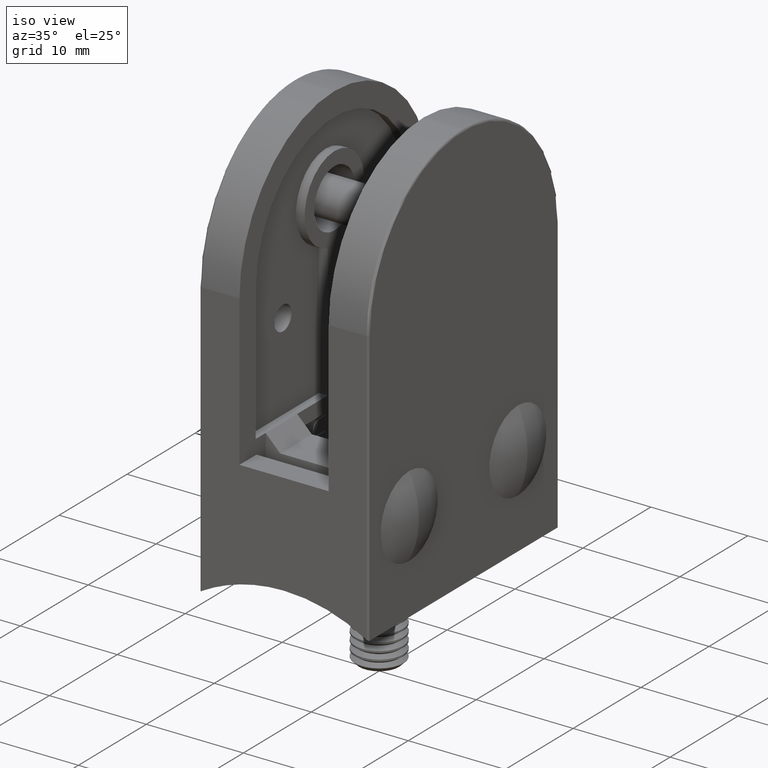
[diagram: clean part render]
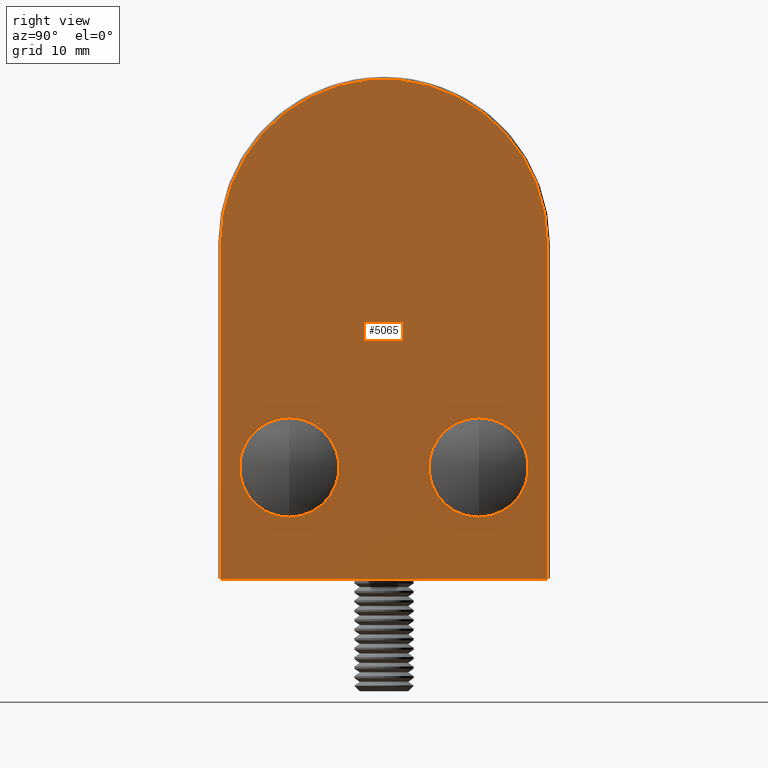
[diagram: tour spotlight — one face highlighted and labeled with its STEP entity id]
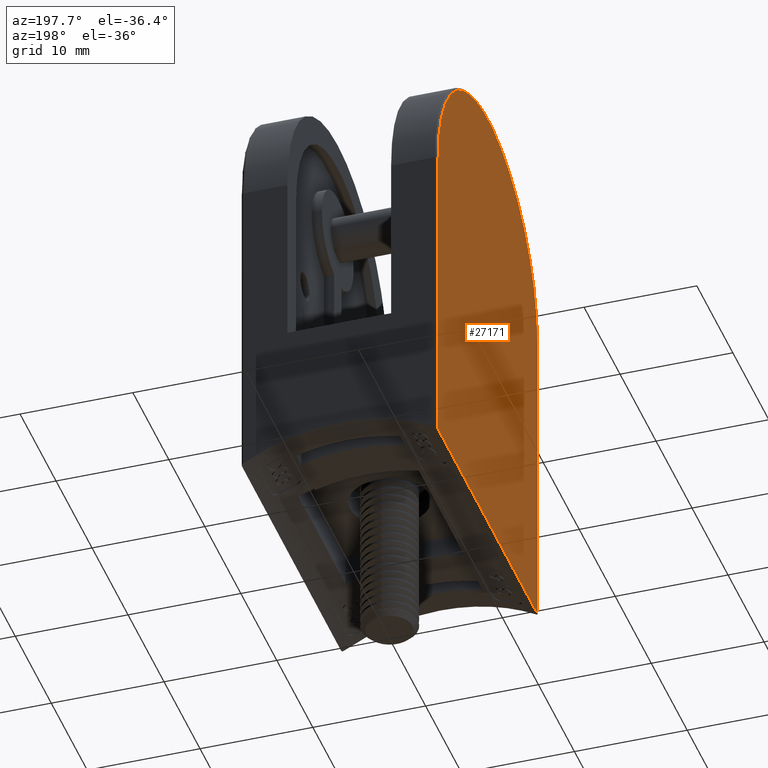
[diagram: tour spotlight — one face highlighted and labeled with its STEP entity id]
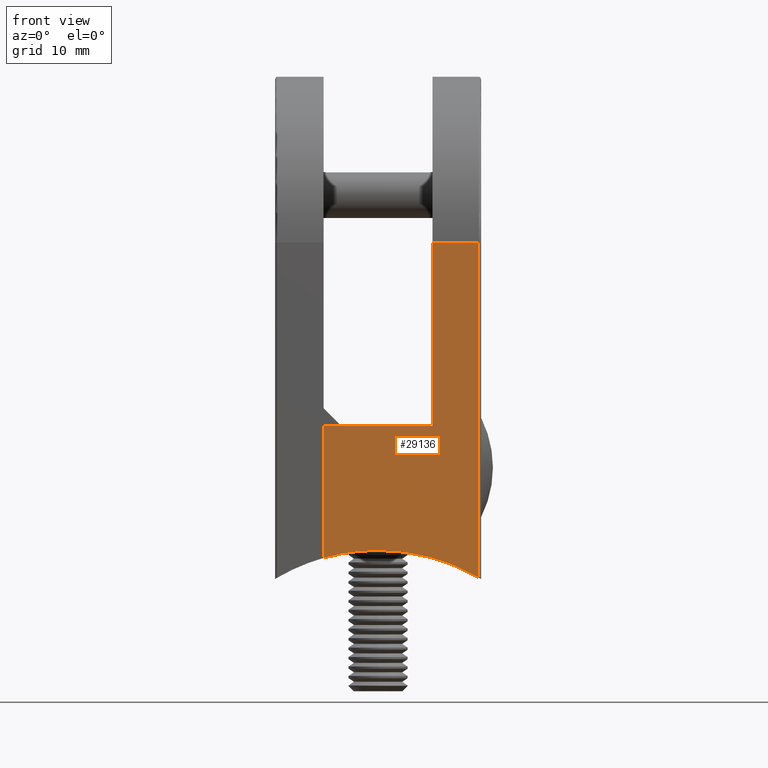
[diagram: tour spotlight — one face highlighted and labeled with its STEP entity id]
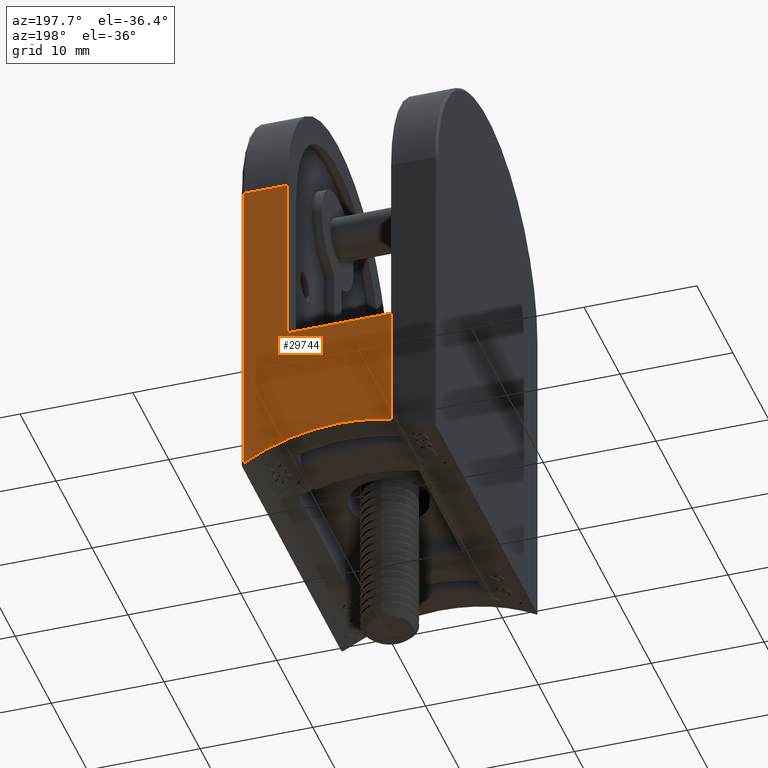
[diagram: tour spotlight — one face highlighted and labeled with its STEP entity id]
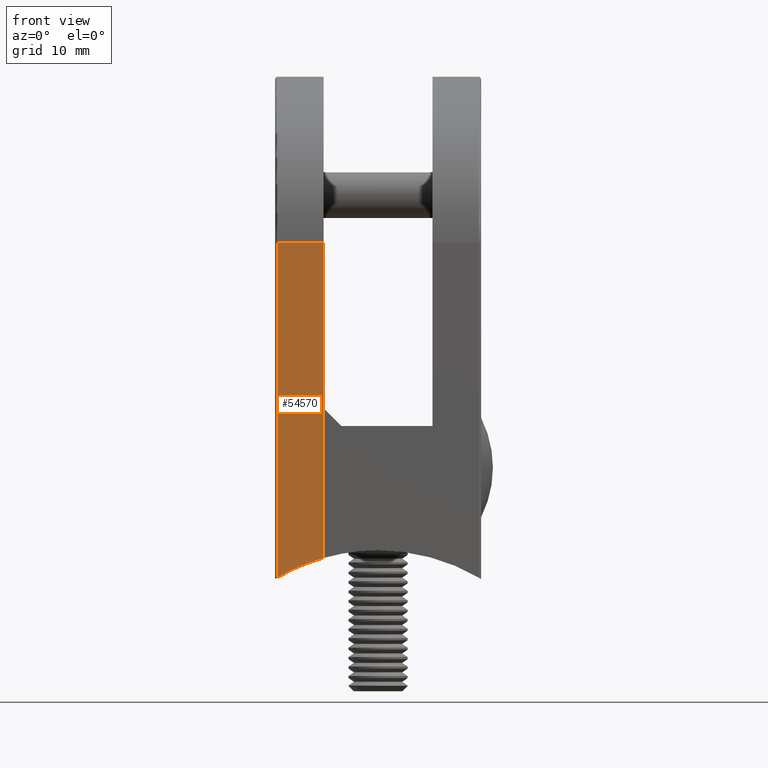
[diagram: tour spotlight — one face highlighted and labeled with its STEP entity id]
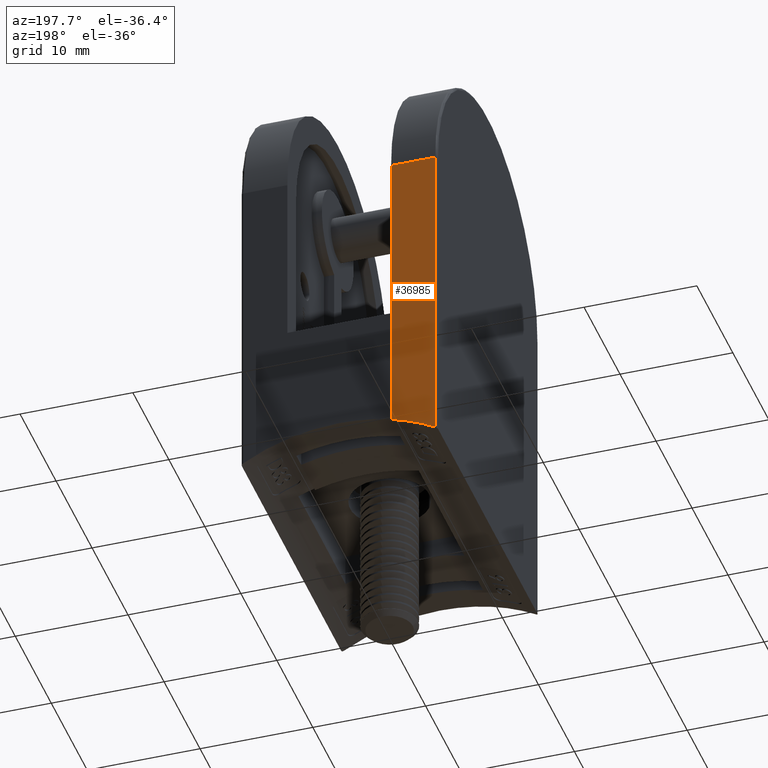
[diagram: tour spotlight — one face highlighted and labeled with its STEP entity id]
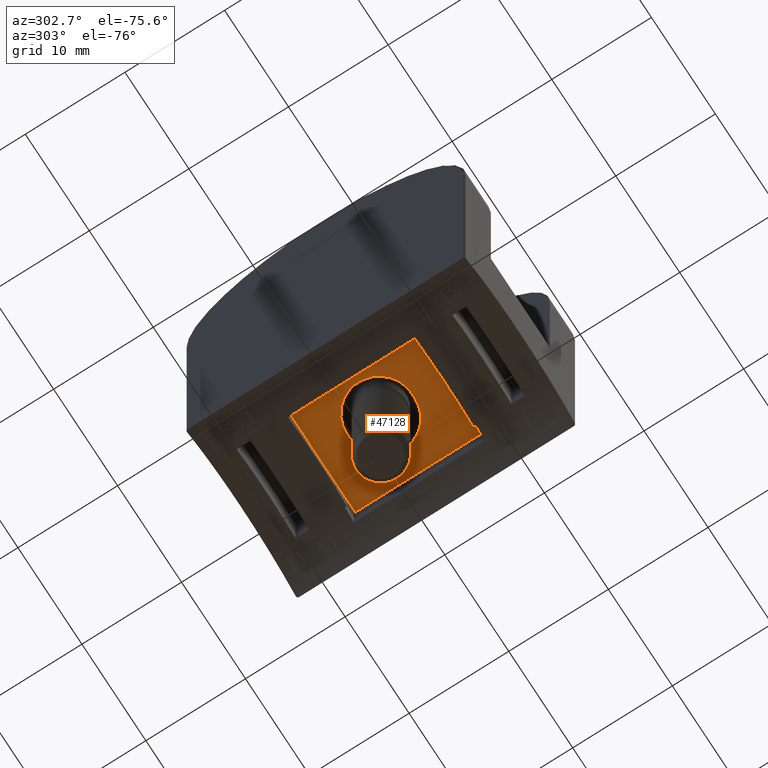
[diagram: tour spotlight — one face highlighted and labeled with its STEP entity id]
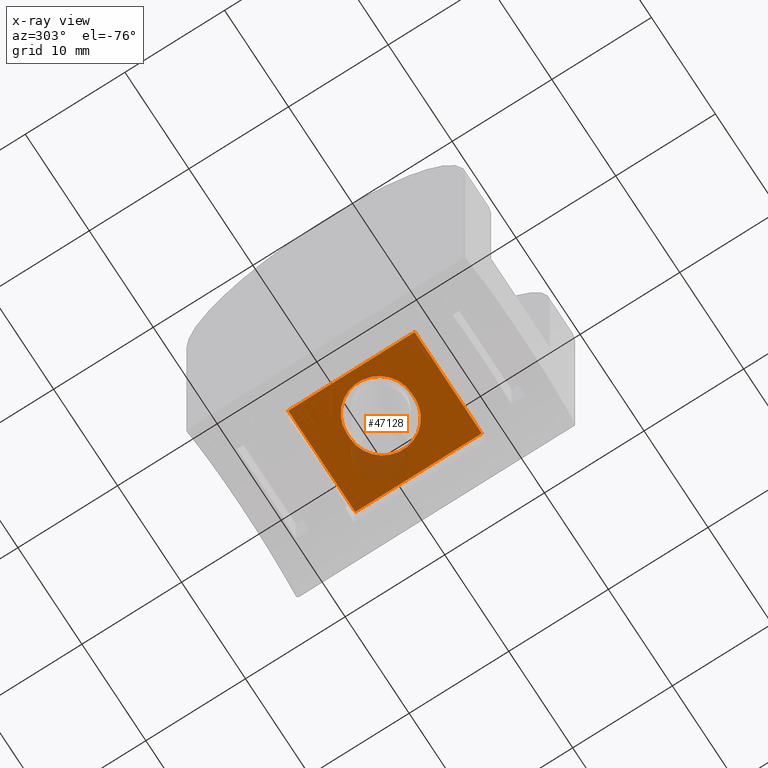
[diagram: x-ray of the same camera — body ghosted, this tour face saturated]
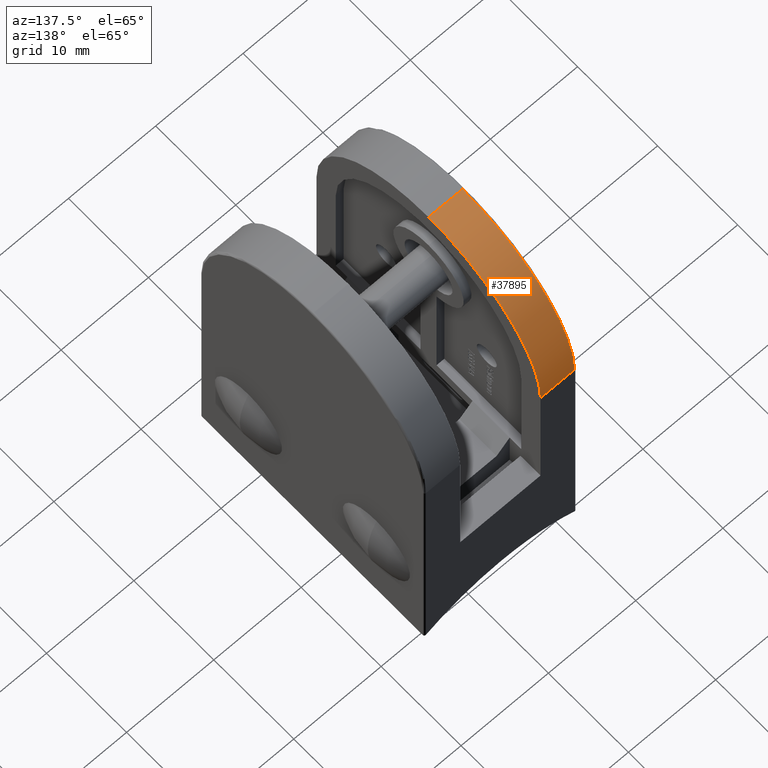
[diagram: tour spotlight — one face highlighted and labeled with its STEP entity id]
A machine part: a face-by-face anatomy tour. The part has 1423 B-rep faces; the first image is the clean iso view, then the 8 largest visible faces are spotlighted one at a time (largest first), each with its STEP entity span.

Face 1 — right view, entity #5065. In plain terms, the highlighted planar face has unit normal (-1, 0, 0).
Definition (entity closure, byte-faithful):
#16 = CARTESIAN_POINT ( 'NONE',  ( -3.469446951953614200E-015, -8.000000000000000000, 2.899999999999993700 ) ) ;
#1720 = ORIENTED_EDGE ( 'NONE', *, *, #41742, .T. ) ;
#1745 = CIRCLE ( 'NONE', #15696, 4.099999999999998800 ) ;
#2087 = CARTESIAN_POINT ( 'NONE',  ( 0.0000000000000000000, -13.99999999999999800, -2.419736662139534600 ) ) ;
#2417 = EDGE_LOOP ( 'NONE', ( #39824, #46245 ) ) ;
#3708 = EDGE_LOOP ( 'NONE', ( #17464, #22022 ) ) ;
#4384 = CARTESIAN_POINT ( 'NONE',  ( -3.469446951953614200E-015, -8.000000000000000000, 6.999999999999992900 ) ) ;
#4615 = CIRCLE ( 'NONE', #22841, 13.79999999999999400 ) ;
#4996 = DIRECTION ( 'NONE',  ( -1.000000000000000000, -0.0000000000000000000, -0.0000000000000000000 ) ) ;
#5065 = ADVANCED_FACE ( 'NONE', ( #8826, #7345, #26538 ), #55468, .F. ) ;
#5357 = CARTESIAN_POINT ( 'NONE',  ( 0.0000000000000000000, -13.79999999999999400, 25.99999999999999600 ) ) ;
#5959 = AXIS2_PLACEMENT_3D ( 'NONE', #39385, #30011, #39598 ) ;
#6668 = EDGE_CURVE ( 'NONE', #29475, #37802, #58371, .T. ) ;
#7345 = FACE_BOUND ( 'NONE', #2417, .T. ) ;
#8209 = AXIS2_PLACEMENT_3D ( 'NONE', #17976, #55538, #27105 ) ;
#8826 = FACE_BOUND ( 'NONE', #3708, .T. ) ;
#9934 = CIRCLE ( 'NONE', #8209, 4.099999999999998800 ) ;
#10102 = VERTEX_POINT ( 'NONE', #50604 ) ;
#10122 = DIRECTION ( 'NONE',  ( 0.0000000000000000000, 0.0000000000000000000, -1.000000000000000000 ) ) ;
#10319 = DIRECTION ( 'NONE',  ( -1.000000000000000000, -0.0000000000000000000, -0.0000000000000000000 ) ) ;
#12195 = DIRECTION ( 'NONE',  ( 0.0000000000000000000, -1.000000000000000000, 0.0000000000000000000 ) ) ;
#12392 = VERTEX_POINT ( 'NONE', #59651 ) ;
#13150 = CARTESIAN_POINT ( 'NONE',  ( 0.0000000000000000000, 0.0000000000000000000, 25.99999999999999600 ) ) ;
#13804 = AXIS2_PLACEMENT_3D ( 'NONE', #13150, #31886, #27032 ) ;
#14394 = EDGE_CURVE ( 'NONE', #10102, #17639, #34475, .T. ) ;
#14409 = DIRECTION ( 'NONE',  ( -0.0000000000000000000, 6.672013369141565500E-017, 1.000000000000000000 ) ) ;
#15696 = AXIS2_PLACEMENT_3D ( 'NONE', #4384, #37570, #23788 ) ;
#17464 = ORIENTED_EDGE ( 'NONE', *, *, #6668, .F. ) ;
#17639 = VERTEX_POINT ( 'NONE', #16 ) ;
#17976 = CARTESIAN_POINT ( 'NONE',  ( -3.469446951953614200E-015, 8.000000000000000000, 6.999999999999992900 ) ) ;
#18278 = VECTOR ( 'NONE', #12195, 1000.000000000000000 ) ;
#19091 = VERTEX_POINT ( 'NONE', #51827 ) ;
#21152 = CARTESIAN_POINT ( 'NONE',  ( -3.469446951953614200E-015, 8.000000000000000000, 2.899999999999993700 ) ) ;
#21609 = ORIENTED_EDGE ( 'NONE', *, *, #57088, .T. ) ;
#22022 = ORIENTED_EDGE ( 'NONE', *, *, #32457, .F. ) ;
#22704 = LINE ( 'NONE', #2087, #18278 ) ;
#22841 = AXIS2_PLACEMENT_3D ( 'NONE', #29376, #10319, #10122 ) ;
#23401 = DIRECTION ( 'NONE',  ( 0.0000000000000000000, 0.0000000000000000000, 1.000000000000000000 ) ) ;
#23788 = DIRECTION ( 'NONE',  ( 0.0000000000000000000, 0.0000000000000000000, 1.000000000000000000 ) ) ;
#24076 = ORIENTED_EDGE ( 'NONE', *, *, #33227, .T. ) ;
#25274 = CARTESIAN_POINT ( 'NONE',  ( 0.0000000000000000000, -13.79999999999999700, -2.419736662139534600 ) ) ;
#25986 = DIRECTION ( 'NONE',  ( -0.0000000000000000000, 6.672013369141565500E-017, -1.000000000000000000 ) ) ;
#26110 = CARTESIAN_POINT ( 'NONE',  ( -3.469446951953614200E-015, 8.000000000000000000, 11.09999999999999300 ) ) ;
#26538 = FACE_OUTER_BOUND ( 'NONE', #42245, .T. ) ;
#27032 = DIRECTION ( 'NONE',  ( 0.0000000000000000000, 0.0000000000000000000, -1.000000000000000000 ) ) ;
#27105 = DIRECTION ( 'NONE',  ( 0.0000000000000000000, 0.0000000000000000000, 1.000000000000000000 ) ) ;
#29376 = CARTESIAN_POINT ( 'NONE',  ( 0.0000000000000000000, 0.0000000000000000000, 25.99999999999999600 ) ) ;
#29475 = VERTEX_POINT ( 'NONE', #26110 ) ;
#30011 = DIRECTION ( 'NONE',  ( -1.000000000000000000, -0.0000000000000000000, -0.0000000000000000000 ) ) ;
#30346 = VECTOR ( 'NONE', #25986, 1000.000000000000000 ) ;
#31557 = AXIS2_PLACEMENT_3D ( 'NONE', #33442, #4996, #23401 ) ;
#31886 = DIRECTION ( 'NONE',  ( 1.000000000000000000, 0.0000000000000000000, 0.0000000000000000000 ) ) ;
#32457 = EDGE_CURVE ( 'NONE', #37802, #29475, #9934, .T. ) ;
#33227 = EDGE_CURVE ( 'NONE', #45881, #12392, #42477, .T. ) ;
#33442 = CARTESIAN_POINT ( 'NONE',  ( -3.469446951953614200E-015, -8.000000000000000000, 6.999999999999992900 ) ) ;
#34475 = CIRCLE ( 'NONE', #31557, 4.099999999999998800 ) ;
#37570 = DIRECTION ( 'NONE',  ( -1.000000000000000000, -0.0000000000000000000, -0.0000000000000000000 ) ) ;
#37802 = VERTEX_POINT ( 'NONE', #21152 ) ;
#38862 = VERTEX_POINT ( 'NONE', #59302 ) ;
#39385 = CARTESIAN_POINT ( 'NONE',  ( -3.469446951953614200E-015, 8.000000000000000000, 6.999999999999992900 ) ) ;
#39598 = DIRECTION ( 'NONE',  ( 0.0000000000000000000, 0.0000000000000000000, 1.000000000000000000 ) ) ;
#39824 = ORIENTED_EDGE ( 'NONE', *, *, #14394, .F. ) ;
#40604 = CARTESIAN_POINT ( 'NONE',  ( 0.0000000000000000000, 13.79999999999999400, 25.99999999999999600 ) ) ;
#41742 = EDGE_CURVE ( 'NONE', #19091, #38862, #58531, .T. ) ;
#42245 = EDGE_LOOP ( 'NONE', ( #1720, #21609, #24076, #46455 ) ) ;
#42477 = LINE ( 'NONE', #5357, #51277 ) ;
#45881 = VERTEX_POINT ( 'NONE', #25274 ) ;
#46245 = ORIENTED_EDGE ( 'NONE', *, *, #48935, .F. ) ;
#46455 = ORIENTED_EDGE ( 'NONE', *, *, #50740, .T. ) ;
#48935 = EDGE_CURVE ( 'NONE', #17639, #10102, #1745, .T. ) ;
#50604 = CARTESIAN_POINT ( 'NONE',  ( -3.469446951953614200E-015, -8.000000000000000000, 11.09999999999999300 ) ) ;
#50740 = EDGE_CURVE ( 'NONE', #12392, #19091, #4615, .T. ) ;
#51277 = VECTOR ( 'NONE', #14409, 1000.000000000000000 ) ;
#51827 = CARTESIAN_POINT ( 'NONE',  ( 0.0000000000000000000, 13.79999999999999400, 25.99999999999999600 ) ) ;
#55468 = PLANE ( 'NONE',  #13804 ) ;
#55538 = DIRECTION ( 'NONE',  ( -1.000000000000000000, -0.0000000000000000000, -0.0000000000000000000 ) ) ;
#57088 = EDGE_CURVE ( 'NONE', #38862, #45881, #22704, .T. ) ;
#58371 = CIRCLE ( 'NONE', #5959, 4.099999999999998800 ) ;
#58531 = LINE ( 'NONE', #40604, #30346 ) ;
#59302 = CARTESIAN_POINT ( 'NONE',  ( 0.0000000000000000000, 13.79999999999999500, -2.419736662139541700 ) ) ;
#59651 = CARTESIAN_POINT ( 'NONE',  ( 0.0000000000000000000, -13.79999999999999400, 25.99999999999999600 ) ) ;

Face 2 — auxiliary view, entity #27171. In plain terms, the highlighted planar face has unit normal (1, 0, 0).
Definition (entity closure, byte-faithful):
#540 = CARTESIAN_POINT ( 'NONE',  ( 0.0000000000000000000, 0.0000000000000000000, 25.99999999999999600 ) ) ;
#1070 = DIRECTION ( 'NONE',  ( 0.0000000000000000000, -0.0000000000000000000, -1.000000000000000000 ) ) ;
#3882 = CARTESIAN_POINT ( 'NONE',  ( 0.0000000000000000000, 13.79999999999999400, -2.419736662139532900 ) ) ;
#5803 = PLANE ( 'NONE',  #49764 ) ;
#7057 = CARTESIAN_POINT ( 'NONE',  ( 0.0000000000000000000, -13.79999999999999500, 25.99999999999999600 ) ) ;
#8848 = DIRECTION ( 'NONE',  ( 0.0000000000000000000, -1.000000000000000000, 0.0000000000000000000 ) ) ;
#15543 = LINE ( 'NONE', #7057, #40851 ) ;
#18324 = VERTEX_POINT ( 'NONE', #43872 ) ;
#19316 = EDGE_CURVE ( 'NONE', #40207, #18324, #15543, .T. ) ;
#21567 = DIRECTION ( 'NONE',  ( 0.0000000000000000000, 0.0000000000000000000, -1.000000000000000000 ) ) ;
#22877 = FACE_OUTER_BOUND ( 'NONE', #48523, .T. ) ;
#23243 = ORIENTED_EDGE ( 'NONE', *, *, #24845, .T. ) ;
#24845 = EDGE_CURVE ( 'NONE', #30374, #40207, #31954, .T. ) ;
#26656 = LINE ( 'NONE', #48735, #46005 ) ;
#27171 = ADVANCED_FACE ( 'NONE', ( #22877 ), #5803, .F. ) ;
#27970 = CARTESIAN_POINT ( 'NONE',  ( 0.0000000000000000000, 13.79999999999999500, 25.99999999999999600 ) ) ;
#30374 = VERTEX_POINT ( 'NONE', #3882 ) ;
#30884 = DIRECTION ( 'NONE',  ( -0.0000000000000000000, -0.0000000000000000000, 1.000000000000000000 ) ) ;
#31065 = EDGE_CURVE ( 'NONE', #18324, #48897, #36781, .T. ) ;
#31689 = CARTESIAN_POINT ( 'NONE',  ( 0.0000000000000000000, -13.99999999999999500, -2.419736662139532900 ) ) ;
#31954 = LINE ( 'NONE', #31689, #48994 ) ;
#33709 = DIRECTION ( 'NONE',  ( -1.000000000000000000, -0.0000000000000000000, -0.0000000000000000000 ) ) ;
#33982 = ORIENTED_EDGE ( 'NONE', *, *, #41182, .T. ) ;
#36781 = CIRCLE ( 'NONE', #38382, 13.79999999999999500 ) ;
#38137 = CARTESIAN_POINT ( 'NONE',  ( 8.131516293641283300E-017, -13.79999999999999500, -2.419736662139532900 ) ) ;
#38382 = AXIS2_PLACEMENT_3D ( 'NONE', #540, #33709, #38466 ) ;
#38466 = DIRECTION ( 'NONE',  ( 0.0000000000000000000, 0.0000000000000000000, -1.000000000000000000 ) ) ;
#40207 = VERTEX_POINT ( 'NONE', #38137 ) ;
#40851 = VECTOR ( 'NONE', #30884, 1000.000000000000000 ) ;
#41182 = EDGE_CURVE ( 'NONE', #48897, #30374, #26656, .T. ) ;
#42915 = ORIENTED_EDGE ( 'NONE', *, *, #19316, .T. ) ;
#43872 = CARTESIAN_POINT ( 'NONE',  ( 0.0000000000000000000, -13.79999999999999500, 25.99999999999999600 ) ) ;
#46005 = VECTOR ( 'NONE', #1070, 1000.000000000000000 ) ;
#48523 = EDGE_LOOP ( 'NONE', ( #33982, #23243, #42915, #54014 ) ) ;
#48689 = CARTESIAN_POINT ( 'NONE',  ( 0.0000000000000000000, 0.0000000000000000000, 25.99999999999999600 ) ) ;
#48735 = CARTESIAN_POINT ( 'NONE',  ( 0.0000000000000000000, 13.79999999999999500, 25.99999999999999600 ) ) ;
#48897 = VERTEX_POINT ( 'NONE', #27970 ) ;
#48994 = VECTOR ( 'NONE', #8848, 1000.000000000000000 ) ;
#49764 = AXIS2_PLACEMENT_3D ( 'NONE', #48689, #50020, #21567 ) ;
#50020 = DIRECTION ( 'NONE',  ( 1.000000000000000000, 0.0000000000000000000, 0.0000000000000000000 ) ) ;
#54014 = ORIENTED_EDGE ( 'NONE', *, *, #31065, .T. ) ;

Face 3 — front view, entity #29136. In plain terms, the highlighted planar face has unit normal (-0, 1, 0).
Definition (entity closure, byte-faithful):
#1508 = LINE ( 'NONE', #58853, #60069 ) ;
#2089 = LINE ( 'NONE', #13456, #51732 ) ;
#3516 = DIRECTION ( 'NONE',  ( 0.0000000000000000000, -1.000000000000000000, -6.672013369141565500E-017 ) ) ;
#3880 = CARTESIAN_POINT ( 'NONE',  ( 8.699999999999997500, 13.99999999999999500, -16.85000000000000100 ) ) ;
#4221 = CARTESIAN_POINT ( 'NONE',  ( 13.29999999999999900, 13.99999999999999500, -6.938893903907228400E-015 ) ) ;
#4237 = LINE ( 'NONE', #4221, #53151 ) ;
#4833 = CARTESIAN_POINT ( 'NONE',  ( 4.099999999999999600, 13.99999999999999500, 10.49999999999999300 ) ) ;
#4877 = VECTOR ( 'NONE', #48235, 1000.000000000000000 ) ;
#5030 = AXIS2_PLACEMENT_3D ( 'NONE', #3880, #37289, #8661 ) ;
#5562 = ORIENTED_EDGE ( 'NONE', *, *, #5569, .T. ) ;
#5569 = EDGE_CURVE ( 'NONE', #33663, #31253, #37714, .T. ) ;
#8312 = AXIS2_PLACEMENT_3D ( 'NONE', #55527, #3516, #36703 ) ;
#8661 = DIRECTION ( 'NONE',  ( 0.0000000000000000000, 1.029509481291874000E-016, -1.000000000000000000 ) ) ;
#8672 = CARTESIAN_POINT ( 'NONE',  ( 13.29999999999999900, 13.99999999999999500, 10.49999999999999300 ) ) ;
#11389 = ORIENTED_EDGE ( 'NONE', *, *, #56878, .F. ) ;
#12300 = CARTESIAN_POINT ( 'NONE',  ( 13.29999999999999900, 13.99999999999999500, 10.49999999999999300 ) ) ;
#12458 = VERTEX_POINT ( 'NONE', #8672 ) ;
#12824 = CARTESIAN_POINT ( 'NONE',  ( 13.29999999999999700, 13.99999999999999500, -0.6400493523268311300 ) ) ;
#13456 = CARTESIAN_POINT ( 'NONE',  ( 4.099999999999999600, 13.99999999999999300, 25.99999999999999600 ) ) ;
#19299 = EDGE_CURVE ( 'NONE', #52740, #31528, #1508, .T. ) ;
#21224 = DIRECTION ( 'NONE',  ( 0.0000000000000000000, -1.000000000000000000, -6.672013369141565500E-017 ) ) ;
#22413 = DIRECTION ( 'NONE',  ( -1.000000000000000000, -0.0000000000000000000, -0.0000000000000000000 ) ) ;
#25560 = PLANE ( 'NONE',  #43099 ) ;
#27450 = VERTEX_POINT ( 'NONE', #4833 ) ;
#27638 = CIRCLE ( 'NONE', #5030, 16.84999999999999400 ) ;
#29136 = ADVANCED_FACE ( 'NONE', ( #44314 ), #25560, .F. ) ;
#30680 = EDGE_CURVE ( 'NONE', #27450, #35375, #51596, .T. ) ;
#30948 = CARTESIAN_POINT ( 'NONE',  ( 8.699999999999997500, 13.99999999999999300, -3.469446951953614200E-015 ) ) ;
#31253 = VERTEX_POINT ( 'NONE', #30948 ) ;
#31528 = VERTEX_POINT ( 'NONE', #37378 ) ;
#31856 = EDGE_CURVE ( 'NONE', #12458, #27450, #54450, .T. ) ;
#32867 = DIRECTION ( 'NONE',  ( 0.0000000000000000000, 0.0000000000000000000, 1.000000000000000000 ) ) ;
#33663 = VERTEX_POINT ( 'NONE', #12824 ) ;
#35375 = VERTEX_POINT ( 'NONE', #49708 ) ;
#35394 = CARTESIAN_POINT ( 'NONE',  ( 4.099999999999999600, 13.99999999999999300, 25.99999999999999600 ) ) ;
#36452 = ORIENTED_EDGE ( 'NONE', *, *, #42759, .F. ) ;
#36703 = DIRECTION ( 'NONE',  ( 0.0000000000000000000, 1.029509481291874000E-016, -1.000000000000000000 ) ) ;
#37289 = DIRECTION ( 'NONE',  ( 0.0000000000000000000, -1.000000000000000000, -6.672013369141565500E-017 ) ) ;
#37378 = CARTESIAN_POINT ( 'NONE',  ( 0.2000000000000000900, 13.99999999999999300, 25.99999999999999600 ) ) ;
#37714 = CIRCLE ( 'NONE', #8312, 16.84999999999999400 ) ;
#38001 = ORIENTED_EDGE ( 'NONE', *, *, #30680, .F. ) ;
#38584 = CARTESIAN_POINT ( 'NONE',  ( 0.2000000000000001200, 13.99999999999999500, -2.301030964360406500 ) ) ;
#39332 = ORIENTED_EDGE ( 'NONE', *, *, #19299, .T. ) ;
#40038 = DIRECTION ( 'NONE',  ( 0.0000000000000000000, -6.672013369141565500E-017, 1.000000000000000000 ) ) ;
#40053 = ORIENTED_EDGE ( 'NONE', *, *, #31856, .F. ) ;
#41907 = VECTOR ( 'NONE', #22413, 1000.000000000000000 ) ;
#42759 = EDGE_CURVE ( 'NONE', #35375, #31528, #2089, .T. ) ;
#43099 = AXIS2_PLACEMENT_3D ( 'NONE', #35394, #21224, #45333 ) ;
#44314 = FACE_OUTER_BOUND ( 'NONE', #45799, .T. ) ;
#45333 = DIRECTION ( 'NONE',  ( 0.0000000000000000000, 6.672013369141565500E-017, -1.000000000000000000 ) ) ;
#45799 = EDGE_LOOP ( 'NONE', ( #11389, #5562, #50750, #39332, #36452, #38001, #40053 ) ) ;
#48235 = DIRECTION ( 'NONE',  ( -0.0000000000000000000, -6.672013369141565500E-017, 1.000000000000000000 ) ) ;
#49415 = EDGE_CURVE ( 'NONE', #31253, #52740, #27638, .T. ) ;
#49708 = CARTESIAN_POINT ( 'NONE',  ( 4.099999999999999600, 13.99999999999999300, 25.99999999999999600 ) ) ;
#50750 = ORIENTED_EDGE ( 'NONE', *, *, #49415, .T. ) ;
#51596 = LINE ( 'NONE', #52749, #4877 ) ;
#51732 = VECTOR ( 'NONE', #55781, 1000.000000000000000 ) ;
#52740 = VERTEX_POINT ( 'NONE', #38584 ) ;
#52749 = CARTESIAN_POINT ( 'NONE',  ( 4.099999999999999600, 13.99999999999999300, 25.99999999999999600 ) ) ;
#53151 = VECTOR ( 'NONE', #32867, 1000.000000000000000 ) ;
#54450 = LINE ( 'NONE', #12300, #41907 ) ;
#55527 = CARTESIAN_POINT ( 'NONE',  ( 8.699999999999997500, 13.99999999999999500, -16.85000000000000100 ) ) ;
#55781 = DIRECTION ( 'NONE',  ( -1.000000000000000000, -0.0000000000000000000, -0.0000000000000000000 ) ) ;
#56878 = EDGE_CURVE ( 'NONE', #33663, #12458, #4237, .T. ) ;
#58853 = CARTESIAN_POINT ( 'NONE',  ( 0.2000000000000000900, 13.99999999999999300, 25.99999999999999600 ) ) ;
#60069 = VECTOR ( 'NONE', #40038, 1000.000000000000000 ) ;

Face 4 — auxiliary view, entity #29744. In plain terms, the highlighted planar face has unit normal (0, -1, -0).
Definition (entity closure, byte-faithful):
#1248 = DIRECTION ( 'NONE',  ( -0.0000000000000000000, -6.672013369141565500E-017, -1.000000000000000000 ) ) ;
#3299 = LINE ( 'NONE', #17204, #36689 ) ;
#5015 = VECTOR ( 'NONE', #40764, 1000.000000000000000 ) ;
#5528 = ORIENTED_EDGE ( 'NONE', *, *, #19036, .T. ) ;
#5911 = VECTOR ( 'NONE', #10268, 1000.000000000000000 ) ;
#9242 = VERTEX_POINT ( 'NONE', #41763 ) ;
#9321 = EDGE_CURVE ( 'NONE', #10970, #9242, #3299, .T. ) ;
#9379 = CARTESIAN_POINT ( 'NONE',  ( 4.099999999999999600, -13.99999999999999500, -6.938893903907228400E-015 ) ) ;
#10268 = DIRECTION ( 'NONE',  ( 0.0000000000000000000, -6.672013369141565500E-017, -1.000000000000000000 ) ) ;
#10672 = AXIS2_PLACEMENT_3D ( 'NONE', #36766, #60571, #13267 ) ;
#10970 = VERTEX_POINT ( 'NONE', #22118 ) ;
#11268 = VERTEX_POINT ( 'NONE', #11911 ) ;
#11911 = CARTESIAN_POINT ( 'NONE',  ( 0.2000000000000005100, -13.99999999999999600, -2.301030964360397700 ) ) ;
#13215 = CARTESIAN_POINT ( 'NONE',  ( 8.699999999999997500, -13.99999999999999800, -16.85000000000000100 ) ) ;
#13267 = DIRECTION ( 'NONE',  ( 0.0000000000000000000, 0.0000000000000000000, 1.000000000000000000 ) ) ;
#15578 = CARTESIAN_POINT ( 'NONE',  ( 0.2000000000000000900, -13.99999999999999500, -6.938893903907228400E-015 ) ) ;
#16243 = CARTESIAN_POINT ( 'NONE',  ( 13.29999999999999900, -13.99999999999999500, -6.938893903907228400E-015 ) ) ;
#16505 = CIRCLE ( 'NONE', #40016, 16.84999999999999800 ) ;
#17204 = CARTESIAN_POINT ( 'NONE',  ( 13.29999999999999900, -13.99999999999999800, 10.49999999999999100 ) ) ;
#17792 = CIRCLE ( 'NONE', #10672, 16.84999999999999800 ) ;
#18191 = DIRECTION ( 'NONE',  ( 0.0000000000000000000, 0.0000000000000000000, 1.000000000000000000 ) ) ;
#18845 = DIRECTION ( 'NONE',  ( 0.0000000000000000000, 1.000000000000000000, -6.672013369141565500E-017 ) ) ;
#19036 = EDGE_CURVE ( 'NONE', #11268, #46184, #17792, .T. ) ;
#19242 = AXIS2_PLACEMENT_3D ( 'NONE', #9379, #18845, #33647 ) ;
#20401 = CARTESIAN_POINT ( 'NONE',  ( 4.099999999999999600, -13.99999999999999300, 25.99999999999999600 ) ) ;
#21399 = CARTESIAN_POINT ( 'NONE',  ( 0.2000000000000000900, -13.99999999999999300, 25.99999999999999600 ) ) ;
#22118 = CARTESIAN_POINT ( 'NONE',  ( 13.29999999999999900, -13.99999999999999800, 10.49999999999999100 ) ) ;
#22577 = DIRECTION ( 'NONE',  ( -1.000000000000000000, -0.0000000000000000000, -0.0000000000000000000 ) ) ;
#24994 = LINE ( 'NONE', #20401, #5015 ) ;
#26251 = ORIENTED_EDGE ( 'NONE', *, *, #9321, .T. ) ;
#29744 = ADVANCED_FACE ( 'NONE', ( #58342 ), #37392, .F. ) ;
#31691 = VERTEX_POINT ( 'NONE', #21399 ) ;
#32422 = EDGE_CURVE ( 'NONE', #46184, #56165, #16505, .T. ) ;
#33647 = DIRECTION ( 'NONE',  ( 0.0000000000000000000, 6.672013369141565500E-017, 1.000000000000000000 ) ) ;
#35609 = EDGE_CURVE ( 'NONE', #10970, #56165, #46204, .T. ) ;
#36689 = VECTOR ( 'NONE', #22577, 1000.000000000000000 ) ;
#36766 = CARTESIAN_POINT ( 'NONE',  ( 8.699999999999997500, -13.99999999999999800, -16.85000000000000100 ) ) ;
#37392 = PLANE ( 'NONE',  #19242 ) ;
#40010 = ORIENTED_EDGE ( 'NONE', *, *, #32422, .T. ) ;
#40016 = AXIS2_PLACEMENT_3D ( 'NONE', #13215, #41280, #18191 ) ;
#40646 = VERTEX_POINT ( 'NONE', #47589 ) ;
#40764 = DIRECTION ( 'NONE',  ( -1.000000000000000000, -0.0000000000000000000, -0.0000000000000000000 ) ) ;
#40848 = LINE ( 'NONE', #15578, #5911 ) ;
#40854 = EDGE_CURVE ( 'NONE', #31691, #11268, #40848, .T. ) ;
#41181 = CARTESIAN_POINT ( 'NONE',  ( 13.29999999999999900, -13.99999999999999800, -0.6400493523268275800 ) ) ;
#41280 = DIRECTION ( 'NONE',  ( 0.0000000000000000000, 1.000000000000000000, 0.0000000000000000000 ) ) ;
#41763 = CARTESIAN_POINT ( 'NONE',  ( 4.099999999999999600, -13.99999999999999500, 10.49999999999999100 ) ) ;
#43429 = EDGE_CURVE ( 'NONE', #40646, #31691, #24994, .T. ) ;
#46184 = VERTEX_POINT ( 'NONE', #52240 ) ;
#46204 = LINE ( 'NONE', #16243, #54297 ) ;
#46622 = ORIENTED_EDGE ( 'NONE', *, *, #35609, .F. ) ;
#47589 = CARTESIAN_POINT ( 'NONE',  ( 4.099999999999999600, -13.99999999999999300, 25.99999999999999600 ) ) ;
#48386 = ORIENTED_EDGE ( 'NONE', *, *, #40854, .T. ) ;
#49068 = EDGE_CURVE ( 'NONE', #40646, #9242, #58140, .T. ) ;
#49204 = VECTOR ( 'NONE', #1248, 1000.000000000000000 ) ;
#50300 = ORIENTED_EDGE ( 'NONE', *, *, #43429, .T. ) ;
#50669 = DIRECTION ( 'NONE',  ( -0.0000000000000000000, 3.304235192336776500E-016, -1.000000000000000000 ) ) ;
#50749 = EDGE_LOOP ( 'NONE', ( #48386, #5528, #40010, #46622, #26251, #58763, #50300 ) ) ;
#52240 = CARTESIAN_POINT ( 'NONE',  ( 8.699999999999997500, -13.99999999999999800, -3.469446951953614200E-015 ) ) ;
#53236 = CARTESIAN_POINT ( 'NONE',  ( 4.099999999999999600, -13.99999999999999500, -6.938893903907228400E-015 ) ) ;
#54297 = VECTOR ( 'NONE', #50669, 1000.000000000000000 ) ;
#56165 = VERTEX_POINT ( 'NONE', #41181 ) ;
#58140 = LINE ( 'NONE', #53236, #49204 ) ;
#58342 = FACE_OUTER_BOUND ( 'NONE', #50749, .T. ) ;
#58763 = ORIENTED_EDGE ( 'NONE', *, *, #49068, .F. ) ;
#60571 = DIRECTION ( 'NONE',  ( 0.0000000000000000000, 1.000000000000000000, 0.0000000000000000000 ) ) ;

Face 5 — front view, entity #54570. In plain terms, the highlighted planar face has unit normal (0, 1, 0).
Definition (entity closure, byte-faithful):
#1159 = CARTESIAN_POINT ( 'NONE',  ( 8.699999999999997500, -13.99999999999999500, -16.85000000000000100 ) ) ;
#4250 = VERTEX_POINT ( 'NONE', #44550 ) ;
#4510 = EDGE_CURVE ( 'NONE', #4250, #38277, #55557, .T. ) ;
#4757 = EDGE_CURVE ( 'NONE', #13693, #29933, #42997, .T. ) ;
#4841 = LINE ( 'NONE', #37663, #53757 ) ;
#6142 = PLANE ( 'NONE',  #9122 ) ;
#6623 = FACE_OUTER_BOUND ( 'NONE', #36061, .T. ) ;
#8534 = CARTESIAN_POINT ( 'NONE',  ( 4.100000000000000500, -13.99999999999999500, -0.6400493523268275800 ) ) ;
#9122 = AXIS2_PLACEMENT_3D ( 'NONE', #44079, #20392, #29965 ) ;
#9761 = CARTESIAN_POINT ( 'NONE',  ( 0.2000000000000000900, -13.99999999999999500, -3.469446951953614200E-015 ) ) ;
#13213 = ORIENTED_EDGE ( 'NONE', *, *, #4510, .T. ) ;
#13235 = VECTOR ( 'NONE', #33997, 1000.000000000000000 ) ;
#13693 = VERTEX_POINT ( 'NONE', #20278 ) ;
#13857 = EDGE_CURVE ( 'NONE', #13693, #38277, #4841, .T. ) ;
#14589 = DIRECTION ( 'NONE',  ( 0.0000000000000000000, 1.000000000000000000, 0.0000000000000000000 ) ) ;
#19446 = DIRECTION ( 'NONE',  ( 0.0000000000000000000, 0.0000000000000000000, -1.000000000000000000 ) ) ;
#20278 = CARTESIAN_POINT ( 'NONE',  ( 4.099999999999999600, -13.99999999999999500, 25.99999999999999600 ) ) ;
#20392 = DIRECTION ( 'NONE',  ( 0.0000000000000000000, 1.000000000000000000, 0.0000000000000000000 ) ) ;
#23671 = VECTOR ( 'NONE', #19446, 1000.000000000000000 ) ;
#28472 = DIRECTION ( 'NONE',  ( -0.0000000000000000000, -0.0000000000000000000, -1.000000000000000000 ) ) ;
#29025 = ORIENTED_EDGE ( 'NONE', *, *, #52711, .T. ) ;
#29346 = DIRECTION ( 'NONE',  ( 0.0000000000000000000, 0.0000000000000000000, 1.000000000000000000 ) ) ;
#29410 = CARTESIAN_POINT ( 'NONE',  ( 4.099999999999999600, -13.99999999999999500, 25.99999999999999600 ) ) ;
#29933 = VERTEX_POINT ( 'NONE', #50786 ) ;
#29965 = DIRECTION ( 'NONE',  ( 0.0000000000000000000, -0.0000000000000000000, 1.000000000000000000 ) ) ;
#30393 = LINE ( 'NONE', #9761, #23671 ) ;
#33997 = DIRECTION ( 'NONE',  ( -1.000000000000000000, -0.0000000000000000000, -0.0000000000000000000 ) ) ;
#36061 = EDGE_LOOP ( 'NONE', ( #29025, #13213, #50116, #40185 ) ) ;
#37663 = CARTESIAN_POINT ( 'NONE',  ( 4.099999999999999600, -13.99999999999999500, -3.469446951953614200E-015 ) ) ;
#38277 = VERTEX_POINT ( 'NONE', #8534 ) ;
#40185 = ORIENTED_EDGE ( 'NONE', *, *, #4757, .T. ) ;
#42997 = LINE ( 'NONE', #29410, #13235 ) ;
#44079 = CARTESIAN_POINT ( 'NONE',  ( 4.099999999999999600, -13.99999999999999500, -3.469446951953614200E-015 ) ) ;
#44550 = CARTESIAN_POINT ( 'NONE',  ( 0.2000000000000000900, -13.99999999999999500, -2.301030964360397700 ) ) ;
#50116 = ORIENTED_EDGE ( 'NONE', *, *, #13857, .F. ) ;
#50786 = CARTESIAN_POINT ( 'NONE',  ( 0.2000000000000000900, -13.99999999999999500, 25.99999999999999600 ) ) ;
#51956 = AXIS2_PLACEMENT_3D ( 'NONE', #1159, #14589, #29346 ) ;
#52711 = EDGE_CURVE ( 'NONE', #29933, #4250, #30393, .T. ) ;
#53757 = VECTOR ( 'NONE', #28472, 1000.000000000000000 ) ;
#54570 = ADVANCED_FACE ( 'NONE', ( #6623 ), #6142, .F. ) ;
#55557 = CIRCLE ( 'NONE', #51956, 16.84999999999999800 ) ;

Face 6 — auxiliary view, entity #36985. In plain terms, the highlighted planar face has unit normal (0, -1, 0).
Definition (entity closure, byte-faithful):
#1993 = ORIENTED_EDGE ( 'NONE', *, *, #51733, .F. ) ;
#2404 = LINE ( 'NONE', #51706, #60260 ) ;
#4611 = CARTESIAN_POINT ( 'NONE',  ( 8.699999999999997500, 13.99999999999999500, -16.85000000000000100 ) ) ;
#5148 = DIRECTION ( 'NONE',  ( 0.0000000000000000000, -1.000000000000000000, 0.0000000000000000000 ) ) ;
#6469 = CARTESIAN_POINT ( 'NONE',  ( 4.099999999999999600, 13.99999999999999500, 25.99999999999999600 ) ) ;
#8036 = EDGE_CURVE ( 'NONE', #38523, #27615, #47154, .T. ) ;
#8208 = LINE ( 'NONE', #36388, #57938 ) ;
#8867 = VERTEX_POINT ( 'NONE', #17225 ) ;
#10098 = VECTOR ( 'NONE', #46398, 1000.000000000000000 ) ;
#13482 = EDGE_CURVE ( 'NONE', #8867, #38523, #55258, .T. ) ;
#16005 = EDGE_CURVE ( 'NONE', #8867, #38078, #2404, .T. ) ;
#17225 = CARTESIAN_POINT ( 'NONE',  ( 0.2000000000000005100, 13.99999999999999500, -2.301030964360397700 ) ) ;
#17809 = FACE_OUTER_BOUND ( 'NONE', #32313, .T. ) ;
#18444 = DIRECTION ( 'NONE',  ( 0.0000000000000000000, 1.000000000000000000, 0.0000000000000000000 ) ) ;
#27615 = VERTEX_POINT ( 'NONE', #6469 ) ;
#32313 = EDGE_LOOP ( 'NONE', ( #59061, #57975, #42993, #1993 ) ) ;
#33378 = PLANE ( 'NONE',  #46107 ) ;
#36388 = CARTESIAN_POINT ( 'NONE',  ( 4.099999999999999600, 13.99999999999999500, 25.99999999999999600 ) ) ;
#36985 = ADVANCED_FACE ( 'NONE', ( #17809 ), #33378, .F. ) ;
#37054 = DIRECTION ( 'NONE',  ( 0.0000000000000000000, -0.0000000000000000000, -1.000000000000000000 ) ) ;
#38078 = VERTEX_POINT ( 'NONE', #48121 ) ;
#38523 = VERTEX_POINT ( 'NONE', #42069 ) ;
#41223 = CARTESIAN_POINT ( 'NONE',  ( 4.099999999999999600, 13.99999999999999500, 25.99999999999999600 ) ) ;
#42069 = CARTESIAN_POINT ( 'NONE',  ( 4.100000000000000500, 13.99999999999999500, -0.6400493523268275800 ) ) ;
#42164 = DIRECTION ( 'NONE',  ( 0.0000000000000000000, 0.0000000000000000000, 1.000000000000000000 ) ) ;
#42993 = ORIENTED_EDGE ( 'NONE', *, *, #16005, .T. ) ;
#43096 = CARTESIAN_POINT ( 'NONE',  ( 4.099999999999999600, 13.99999999999999500, 25.99999999999999600 ) ) ;
#46107 = AXIS2_PLACEMENT_3D ( 'NONE', #43096, #5148, #37054 ) ;
#46398 = DIRECTION ( 'NONE',  ( -0.0000000000000000000, -0.0000000000000000000, 1.000000000000000000 ) ) ;
#47154 = LINE ( 'NONE', #41223, #10098 ) ;
#48121 = CARTESIAN_POINT ( 'NONE',  ( 0.2000000000000000900, 13.99999999999999500, 25.99999999999999600 ) ) ;
#48622 = DIRECTION ( 'NONE',  ( -0.0000000000000000000, 0.0000000000000000000, 1.000000000000000000 ) ) ;
#50642 = DIRECTION ( 'NONE',  ( -1.000000000000000000, -0.0000000000000000000, -0.0000000000000000000 ) ) ;
#51706 = CARTESIAN_POINT ( 'NONE',  ( 0.2000000000000000900, 13.99999999999999500, 25.99999999999999600 ) ) ;
#51733 = EDGE_CURVE ( 'NONE', #27615, #38078, #8208, .T. ) ;
#53303 = AXIS2_PLACEMENT_3D ( 'NONE', #4611, #18444, #42164 ) ;
#55258 = CIRCLE ( 'NONE', #53303, 16.84999999999999800 ) ;
#57938 = VECTOR ( 'NONE', #50642, 1000.000000000000000 ) ;
#57975 = ORIENTED_EDGE ( 'NONE', *, *, #13482, .F. ) ;
#59061 = ORIENTED_EDGE ( 'NONE', *, *, #8036, .F. ) ;
#60260 = VECTOR ( 'NONE', #48622, 1000.000000000000000 ) ;

Face 7 — auxiliary view, entity #47128. An x-ray twin of the same camera follows (body ghosted, this face saturated) — the face is partly hidden behind the body. In plain terms, the highlighted planar face has unit normal (0, -0, 1).
Definition (entity closure, byte-faithful):
#462 = FACE_BOUND ( 'NONE', #49814, .T. ) ;
#1298 = DIRECTION ( 'NONE',  ( -1.000000000000000000, -0.0000000000000000000, -0.0000000000000000000 ) ) ;
#1591 = LINE ( 'NONE', #32151, #14162 ) ;
#3352 = CARTESIAN_POINT ( 'NONE',  ( 4.099999999999999600, 6.350000000000004100, 1.599999999999995400 ) ) ;
#3638 = EDGE_CURVE ( 'NONE', #58619, #39015, #59352, .T. ) ;
#3899 = VERTEX_POINT ( 'NONE', #39052 ) ;
#4610 = DIRECTION ( 'NONE',  ( -0.0000000000000000000, 1.000000000000000000, 1.024442997624098300E-016 ) ) ;
#4764 = LINE ( 'NONE', #51643, #19543 ) ;
#6175 = EDGE_CURVE ( 'NONE', #54150, #54238, #27951, .T. ) ;
#7645 = CARTESIAN_POINT ( 'NONE',  ( 14.60000000000000000, -6.350000000000006800, 1.599999999999994300 ) ) ;
#9417 = VERTEX_POINT ( 'NONE', #23426 ) ;
#9418 = EDGE_CURVE ( 'NONE', #9417, #39015, #4764, .T. ) ;
#9471 = CARTESIAN_POINT ( 'NONE',  ( 14.60000000000000000, 6.349999999999997900, 1.599999999999995400 ) ) ;
#9536 = ORIENTED_EDGE ( 'NONE', *, *, #3638, .F. ) ;
#11517 = FACE_OUTER_BOUND ( 'NONE', #40242, .T. ) ;
#13372 = DIRECTION ( 'NONE',  ( 0.0000000000000000000, 1.000000000000000000, 6.672013369141564200E-017 ) ) ;
#13407 = DIRECTION ( 'NONE',  ( -1.000000000000000000, -0.0000000000000000000, -0.0000000000000000000 ) ) ;
#13772 = LINE ( 'NONE', #21297, #31541 ) ;
#14006 = VECTOR ( 'NONE', #23200, 1000.000000000000000 ) ;
#14162 = VECTOR ( 'NONE', #13407, 1000.000000000000000 ) ;
#14295 = DIRECTION ( 'NONE',  ( -1.000000000000000000, -0.0000000000000000000, -0.0000000000000000000 ) ) ;
#14649 = ORIENTED_EDGE ( 'NONE', *, *, #32213, .F. ) ;
#16952 = DIRECTION ( 'NONE',  ( 0.0000000000000000000, 6.829619984160659300E-017, -1.000000000000000000 ) ) ;
#17194 = CIRCLE ( 'NONE', #48352, 3.250000000000000400 ) ;
#17744 = PLANE ( 'NONE',  #41941 ) ;
#18586 = LINE ( 'NONE', #47112, #54949 ) ;
#18647 = VERTEX_POINT ( 'NONE', #28432 ) ;
#19123 = EDGE_CURVE ( 'NONE', #54150, #3899, #18586, .T. ) ;
#19543 = VECTOR ( 'NONE', #32860, 1000.000000000000000 ) ;
#21297 = CARTESIAN_POINT ( 'NONE',  ( 14.60000000000000000, 6.349999999999997900, 1.599999999999995400 ) ) ;
#22079 = DIRECTION ( 'NONE',  ( 0.0000000000000000000, -1.024442997624098500E-016, 1.000000000000000000 ) ) ;
#22543 = CARTESIAN_POINT ( 'NONE',  ( 8.949999999999995700, -3.249999999999999600, 1.599999999999994500 ) ) ;
#23200 = DIRECTION ( 'NONE',  ( 1.000000000000000000, -0.0000000000000000000, -0.0000000000000000000 ) ) ;
#23426 = CARTESIAN_POINT ( 'NONE',  ( 4.099999999999999600, -6.350000000000006800, 1.599999999999996500 ) ) ;
#24007 = VECTOR ( 'NONE', #1298, 1000.000000000000000 ) ;
#24413 = EDGE_CURVE ( 'NONE', #54238, #9417, #1591, .T. ) ;
#24466 = ORIENTED_EDGE ( 'NONE', *, *, #6175, .T. ) ;
#27476 = CARTESIAN_POINT ( 'NONE',  ( 8.949999999999997500, -2.251432195772212000E-016, 1.599999999999995000 ) ) ;
#27806 = VERTEX_POINT ( 'NONE', #53456 ) ;
#27951 = LINE ( 'NONE', #56849, #38418 ) ;
#28432 = CARTESIAN_POINT ( 'NONE',  ( 8.450000000000001100, 3.250000000000000400, 1.599999999999995000 ) ) ;
#29888 = CARTESIAN_POINT ( 'NONE',  ( 8.450000000000001100, -3.250000000000000000, 1.599999999999994800 ) ) ;
#29986 = VERTEX_POINT ( 'NONE', #22543 ) ;
#31541 = VECTOR ( 'NONE', #61067, 1000.000000000000000 ) ;
#32151 = CARTESIAN_POINT ( 'NONE',  ( 14.60000000000000000, -6.350000000000006800, 1.599999999999994300 ) ) ;
#32213 = EDGE_CURVE ( 'NONE', #29986, #27806, #49276, .T. ) ;
#32445 = ORIENTED_EDGE ( 'NONE', *, *, #54771, .F. ) ;
#32729 = EDGE_CURVE ( 'NONE', #48623, #29986, #33680, .T. ) ;
#32860 = DIRECTION ( 'NONE',  ( -0.0000000000000000000, 1.000000000000000000, 1.024442997624098300E-016 ) ) ;
#33680 = CIRCLE ( 'NONE', #47176, 3.250000000000000400 ) ;
#37037 = LINE ( 'NONE', #42958, #14006 ) ;
#37324 = CARTESIAN_POINT ( 'NONE',  ( 14.60000000000000000, 6.349999999999997900, 1.599999999999995400 ) ) ;
#37889 = VECTOR ( 'NONE', #42251, 1000.000000000000000 ) ;
#38418 = VECTOR ( 'NONE', #14295, 1000.000000000000000 ) ;
#38992 = ORIENTED_EDGE ( 'NONE', *, *, #24413, .T. ) ;
#39015 = VERTEX_POINT ( 'NONE', #3352 ) ;
#39028 = ORIENTED_EDGE ( 'NONE', *, *, #19123, .F. ) ;
#39052 = CARTESIAN_POINT ( 'NONE',  ( 14.60000000000000000, 6.349999999999997900, 1.599999999999995400 ) ) ;
#40242 = EDGE_LOOP ( 'NONE', ( #45288, #9536, #53002, #39028, #24466, #38992 ) ) ;
#41087 = DIRECTION ( 'NONE',  ( 0.0000000000000000000, 1.000000000000000000, 6.672013369141564200E-017 ) ) ;
#41861 = DIRECTION ( 'NONE',  ( 0.0000000000000000000, 6.829619984160659300E-017, -1.000000000000000000 ) ) ;
#41941 = AXIS2_PLACEMENT_3D ( 'NONE', #37324, #22079, #60081 ) ;
#42251 = DIRECTION ( 'NONE',  ( -1.000000000000000000, -0.0000000000000000000, -0.0000000000000000000 ) ) ;
#42958 = CARTESIAN_POINT ( 'NONE',  ( 8.949999999999997500, 3.250000000000000400, 1.599999999999995000 ) ) ;
#44875 = CARTESIAN_POINT ( 'NONE',  ( 13.29999999999999900, 6.349999999999997900, 1.599999999999995400 ) ) ;
#45288 = ORIENTED_EDGE ( 'NONE', *, *, #9418, .T. ) ;
#47112 = CARTESIAN_POINT ( 'NONE',  ( 14.60000000000000000, 6.349999999999997900, 1.599999999999995400 ) ) ;
#47128 = ADVANCED_FACE ( 'NONE', ( #462, #11517 ), #17744, .F. ) ;
#47176 = AXIS2_PLACEMENT_3D ( 'NONE', #27476, #41861, #13372 ) ;
#48352 = AXIS2_PLACEMENT_3D ( 'NONE', #54724, #16952, #41087 ) ;
#48374 = ORIENTED_EDGE ( 'NONE', *, *, #32729, .F. ) ;
#48376 = CARTESIAN_POINT ( 'NONE',  ( 8.949999999999997500, 3.250000000000000400, 1.599999999999995000 ) ) ;
#48623 = VERTEX_POINT ( 'NONE', #48376 ) ;
#49276 = LINE ( 'NONE', #29888, #24007 ) ;
#49652 = EDGE_CURVE ( 'NONE', #27806, #18647, #17194, .T. ) ;
#49814 = EDGE_LOOP ( 'NONE', ( #14649, #48374, #32445, #53835 ) ) ;
#50713 = CARTESIAN_POINT ( 'NONE',  ( 13.29999999999999900, -6.350000000000006800, 1.599999999999994300 ) ) ;
#51643 = CARTESIAN_POINT ( 'NONE',  ( 4.099999999999999600, 6.349999999999997900, 1.599999999999995400 ) ) ;
#53002 = ORIENTED_EDGE ( 'NONE', *, *, #58639, .F. ) ;
#53456 = CARTESIAN_POINT ( 'NONE',  ( 8.450000000000001100, -3.250000000000000400, 1.599999999999994800 ) ) ;
#53835 = ORIENTED_EDGE ( 'NONE', *, *, #49652, .F. ) ;
#54150 = VERTEX_POINT ( 'NONE', #7645 ) ;
#54238 = VERTEX_POINT ( 'NONE', #50713 ) ;
#54724 = CARTESIAN_POINT ( 'NONE',  ( 8.449999999999999300, -1.639108796198552300E-016, 1.599999999999995000 ) ) ;
#54771 = EDGE_CURVE ( 'NONE', #18647, #48623, #37037, .T. ) ;
#54949 = VECTOR ( 'NONE', #4610, 1000.000000000000000 ) ;
#56849 = CARTESIAN_POINT ( 'NONE',  ( 14.60000000000000000, -6.350000000000006800, 1.599999999999994300 ) ) ;
#58619 = VERTEX_POINT ( 'NONE', #44875 ) ;
#58639 = EDGE_CURVE ( 'NONE', #3899, #58619, #13772, .T. ) ;
#59352 = LINE ( 'NONE', #9471, #37889 ) ;
#60081 = DIRECTION ( 'NONE',  ( 0.0000000000000000000, -1.000000000000000000, -1.024442997624098500E-016 ) ) ;
#61067 = DIRECTION ( 'NONE',  ( -1.000000000000000000, -0.0000000000000000000, -0.0000000000000000000 ) ) ;

Face 8 — auxiliary view, entity #37895. In plain terms, the highlighted cylindrical surface (partial cylindrical patch) has radius 14 mm, axis along (-1, -0, -0).
Definition (entity closure, byte-faithful):
#6469 = CARTESIAN_POINT ( 'NONE',  ( 4.099999999999999600, 13.99999999999999500, 25.99999999999999600 ) ) ;
#7631 = ORIENTED_EDGE ( 'NONE', *, *, #51733, .T. ) ;
#8208 = LINE ( 'NONE', #36388, #57938 ) ;
#8218 = CARTESIAN_POINT ( 'NONE',  ( 4.099999999999999600, 0.0000000000000000000, 25.99999999999999600 ) ) ;
#10814 = VERTEX_POINT ( 'NONE', #24460 ) ;
#11448 = VERTEX_POINT ( 'NONE', #32064 ) ;
#11719 = EDGE_CURVE ( 'NONE', #10814, #11448, #27209, .T. ) ;
#12523 = DIRECTION ( 'NONE',  ( 0.0000000000000000000, 0.0000000000000000000, -1.000000000000000000 ) ) ;
#13261 = DIRECTION ( 'NONE',  ( 0.0000000000000000000, 0.0000000000000000000, 1.000000000000000000 ) ) ;
#14488 = CYLINDRICAL_SURFACE ( 'NONE', #27798, 13.99999999999999800 ) ;
#17177 = DIRECTION ( 'NONE',  ( 0.0000000000000000000, 0.0000000000000000000, -1.000000000000000000 ) ) ;
#24460 = CARTESIAN_POINT ( 'NONE',  ( 4.099999999999999600, 0.0000000000000000000, 39.99999999999999300 ) ) ;
#26301 = DIRECTION ( 'NONE',  ( -1.000000000000000000, -0.0000000000000000000, -0.0000000000000000000 ) ) ;
#27209 = LINE ( 'NONE', #54128, #27947 ) ;
#27615 = VERTEX_POINT ( 'NONE', #6469 ) ;
#27798 = AXIS2_PLACEMENT_3D ( 'NONE', #46288, #55174, #13261 ) ;
#27947 = VECTOR ( 'NONE', #26301, 1000.000000000000000 ) ;
#28002 = ORIENTED_EDGE ( 'NONE', *, *, #11719, .F. ) ;
#28806 = AXIS2_PLACEMENT_3D ( 'NONE', #31360, #44844, #17177 ) ;
#31360 = CARTESIAN_POINT ( 'NONE',  ( 0.2000000000000000900, 0.0000000000000000000, 25.99999999999999600 ) ) ;
#32064 = CARTESIAN_POINT ( 'NONE',  ( 0.2000000000000000900, 0.0000000000000000000, 39.99999999999999300 ) ) ;
#34582 = CIRCLE ( 'NONE', #28806, 13.99999999999999500 ) ;
#36388 = CARTESIAN_POINT ( 'NONE',  ( 4.099999999999999600, 13.99999999999999500, 25.99999999999999600 ) ) ;
#37616 = ORIENTED_EDGE ( 'NONE', *, *, #46633, .T. ) ;
#37895 = ADVANCED_FACE ( 'NONE', ( #45705 ), #14488, .T. ) ;
#38078 = VERTEX_POINT ( 'NONE', #48121 ) ;
#39923 = EDGE_LOOP ( 'NONE', ( #28002, #60779, #7631, #37616 ) ) ;
#41437 = CIRCLE ( 'NONE', #54025, 13.99999999999999500 ) ;
#44844 = DIRECTION ( 'NONE',  ( 1.000000000000000000, 0.0000000000000000000, 0.0000000000000000000 ) ) ;
#45335 = DIRECTION ( 'NONE',  ( 1.000000000000000000, 0.0000000000000000000, 0.0000000000000000000 ) ) ;
#45705 = FACE_OUTER_BOUND ( 'NONE', #39923, .T. ) ;
#46288 = CARTESIAN_POINT ( 'NONE',  ( 4.099999999999999600, 0.0000000000000000000, 25.99999999999999600 ) ) ;
#46633 = EDGE_CURVE ( 'NONE', #38078, #11448, #34582, .T. ) ;
#48121 = CARTESIAN_POINT ( 'NONE',  ( 0.2000000000000000900, 13.99999999999999500, 25.99999999999999600 ) ) ;
#50642 = DIRECTION ( 'NONE',  ( -1.000000000000000000, -0.0000000000000000000, -0.0000000000000000000 ) ) ;
#51733 = EDGE_CURVE ( 'NONE', #27615, #38078, #8208, .T. ) ;
#54025 = AXIS2_PLACEMENT_3D ( 'NONE', #8218, #45335, #12523 ) ;
#54128 = CARTESIAN_POINT ( 'NONE',  ( 4.099999999999999600, 0.0000000000000000000, 39.99999999999999300 ) ) ;
#55174 = DIRECTION ( 'NONE',  ( -1.000000000000000000, -0.0000000000000000000, -0.0000000000000000000 ) ) ;
#55389 = EDGE_CURVE ( 'NONE', #27615, #10814, #41437, .T. ) ;
#57938 = VECTOR ( 'NONE', #50642, 1000.000000000000000 ) ;
#60779 = ORIENTED_EDGE ( 'NONE', *, *, #55389, .F. ) ;